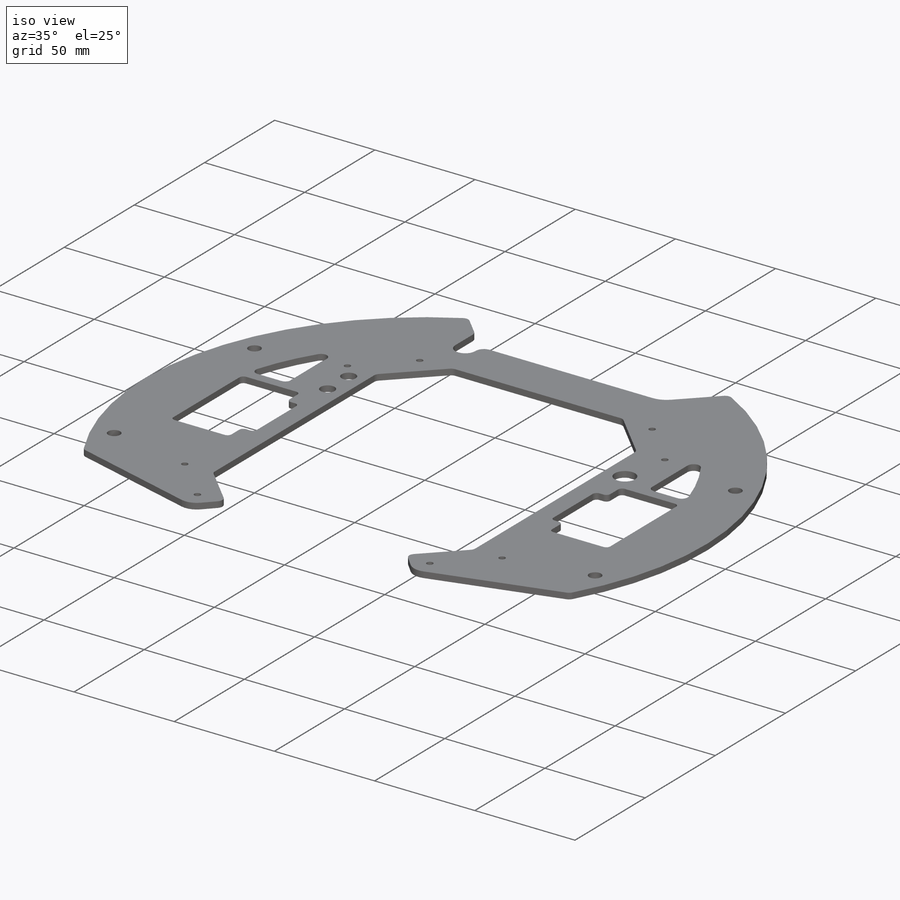
[diagram: iso view]
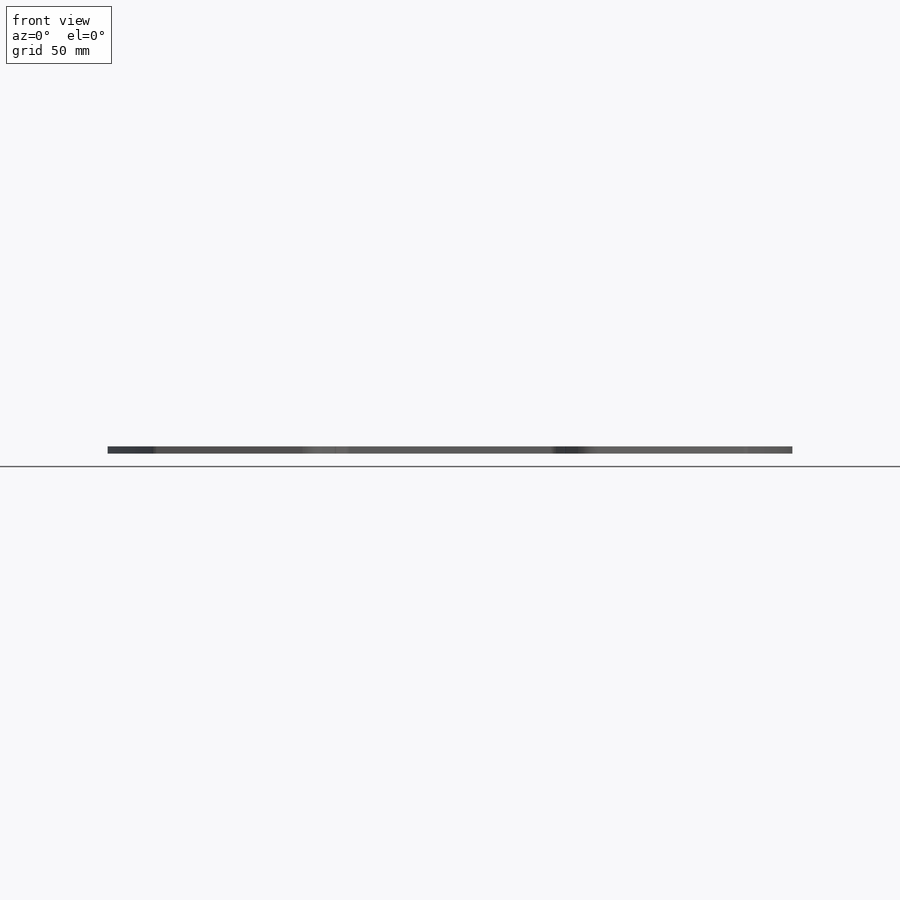
[diagram: front view]
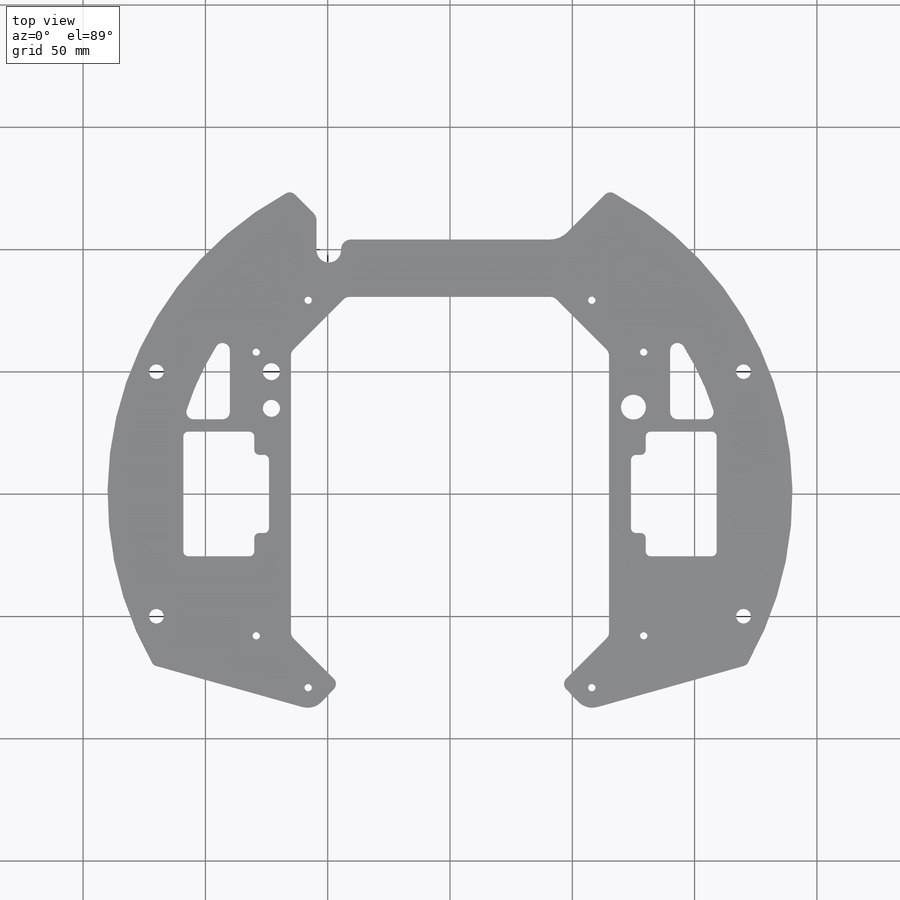
[diagram: top view]
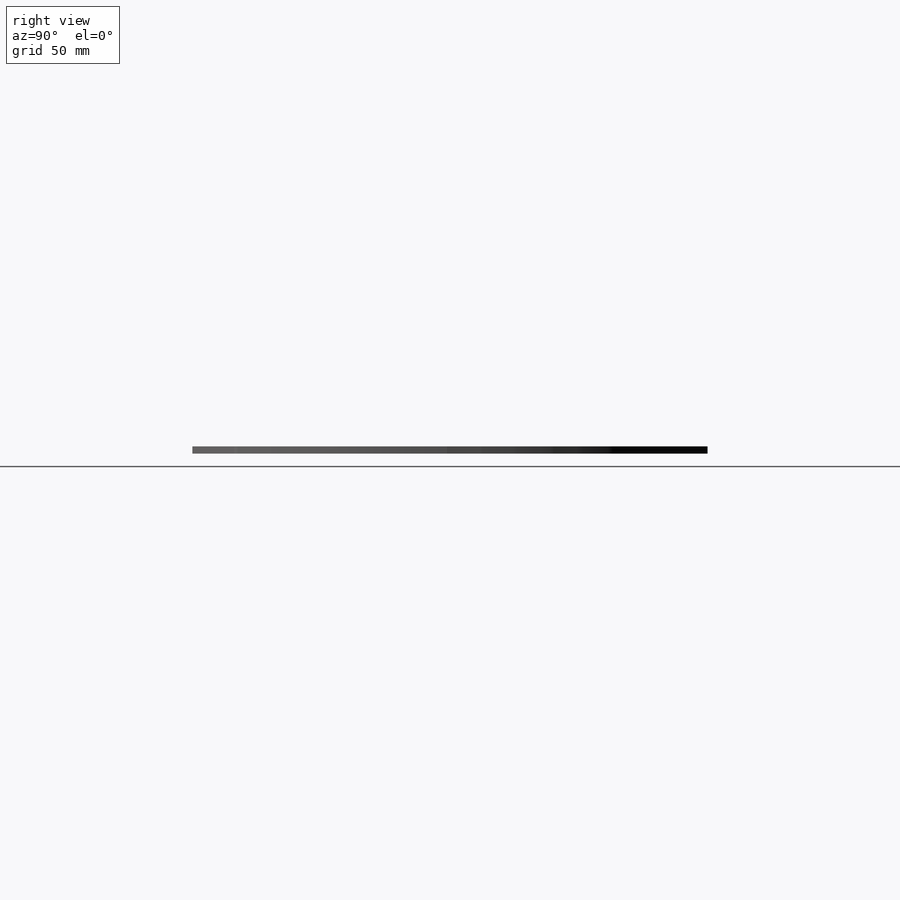
[diagram: right view]
SOLIDWORKS PART (.sldprt)
format: sldprt  version: not decoded by parser v0  size: 666,112 bytes
history: native  units: mm
features: sketch x14, cut_extrude x13, fillet x6, material x1, extrude x1, mirror x1 (+11 scaffold rows collapsed)
feature tree (47):
  scaffold x11  (default folders/planes/origin — collapsed)
  material  "1060 Alloy"
  sketch  "Sketch1"  dims[D1=280.0mm]
  extrude  "Boss-Extrude1"  Depth=3mm
  sketch  "Sketch17"  dims[D1=90.0mm D2=50.0mm D3=50.0mm D4=70.0mm]
  cut_extrude  "Cut-Extrude1"  [1 undecoded]
  sketch  "Sketch19"  dims[c1.D5=3.0mm c1.D3=3.0mm c1.D1=154.15mm c1.D2=111.72mm c2.D3=55.86mm c2.D4=77.075mm c2.D6=~95.188735mm c3.D3=55.86mm c3.D6=97.0mm c3.D1=15.0mm c3.D2=15.0mm]
  cut_extrude  "Cut-Extrude3"  [1 undecoded]
  sketch  "Sketch20"  dims[c1.D1=25.0mm c1.D2=90.0mm c1.D3=45.0mm c1.D4=~36.040204mm c2.D4=45.0deg c2.D5=150.0mm c3.D5=45.0deg c3.D1=130.0mm]
  cut_extrude  "Cut-Extrude4"  [1 undecoded]
  sketch  "Sketch21"  dims[c1.D1=90.0mm c1.D2=8.0mm c1.D10=8.0mm c1.D3=111.72mm c1.D4=154.15mm c1.D5=55.86mm c1.D6=77.075mm c1.D7=20.0mm c1.D8=97.0mm c2.D3=15.0mm c2.D1=40.0mm c2.D4=15.0mm c2.D5=45.0mm c2.D6=10.0mm c2.D7=10.0mm c2.D9=10.0mm c2.D10=10.0mm c2.D11=10.0mm c2.D12=10.0mm c2.D13=10.0mm c2.D14=10.0mm]
  cut_extrude  "Cut-Extrude5"  [1 undecoded]
  fillet  "Fillet1"  Radius=20mm
  fillet  "Fillet2"  Radius=10mm
  sketch  "Sketch22"  dims[D1=80.0mm D2=80.0mm D3=54.0mm D4=51.0mm D5=29.0mm D6=28.0mm D7=25.5mm D8=27.0mm]
  cut_extrude  "Cut-Extrude6"  [1 undecoded]
  sketch  "Sketch31"  dims[D1=32.0mm D2=35.0mm D3=16.0mm]
  cut_extrude  "Cut-Extrude15"  [1 undecoded]
  fillet  "Fillet3"  Radius=2mm
  sketch  "Sketch23"  dims[D1=6.0mm D2=120.0mm D3=120.0mm D4=50.0mm D5=50.0mm]
  cut_extrude  "Cut-Extrude7"  [1 undecoded]
  sketch  "Sketch24"  dims[c1.D3=140.0mm c1.D1=5.0mm c1.D2=90.0mm c2.D3=27.0mm]
  cut_extrude  "Cut-Extrude8"  [1 undecoded]
  fillet  "Fillet4"  Radius=3mm
  mirror  "Mirror1"
  sketch  "Sketch26"  dims[c1.D2=3.0mm c1.D3=3.0mm c1.D1=15.0mm c2.D2=10.0mm c2.D3=15.0mm]
  cut_extrude  "Cut-Extrude10"  [1 undecoded]
  sketch  "Sketch27"  dims[D1=85.0mm D2=90.0mm]
  cut_extrude  "Cut-Extrude11"  [1 undecoded]
  sketch  "Sketch28"  dims[D1=~21.163474mm D2=49.55mm D3=99.6mm D4=20.0mm]
  cut_extrude  "Cut-Extrude12"  [1 undecoded]
  fillet  "Fillet5"  Radius=3mm
  fillet  "Fillet6"  Radius=4mm
  sketch  "Sketch29"  dims[D1=10.2mm D2=10.0mm D3=5.0mm]
  cut_extrude  "Cut-Extrude13"  [1 undecoded]
  sketch  "Sketch30"  dims[c1.D1=7.0mm c1.D2=15.0mm c1.D3=15.0mm c1.D4=12.0mm c1.D5=~12.269773mm c2.D3=8.0mm c2.D4=35.0mm]
  cut_extrude  "Cut-Extrude14"  [1 undecoded]
decode coverage: 21 of 35 modeling features carry decoded parameters
note: ~ marks probable driven/reference dimensions
note: 13 parameter values undecoded
summary: no parameter record found for 13 features
note: suppression state not decoded; provenance and decode notes live in map.json
